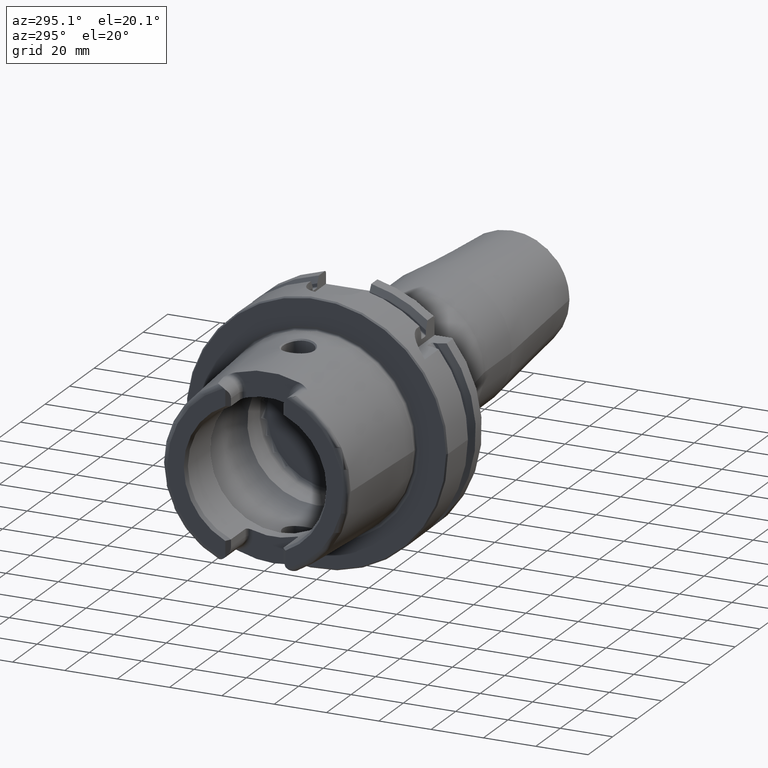
[diagram: clean part render]
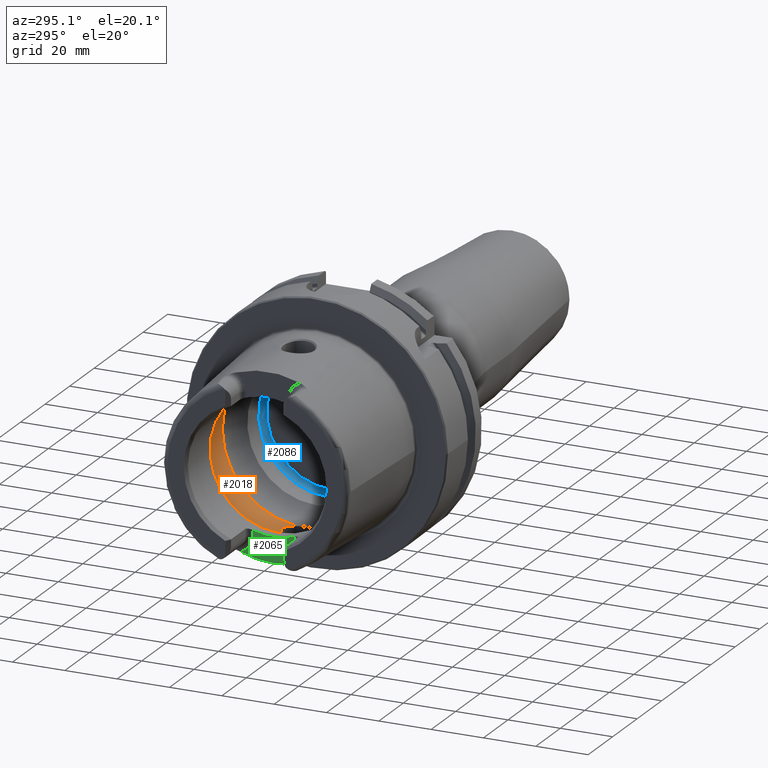
[diagram: same view with three faces highlighted in distinct colors, each labeled with its STEP entity id]
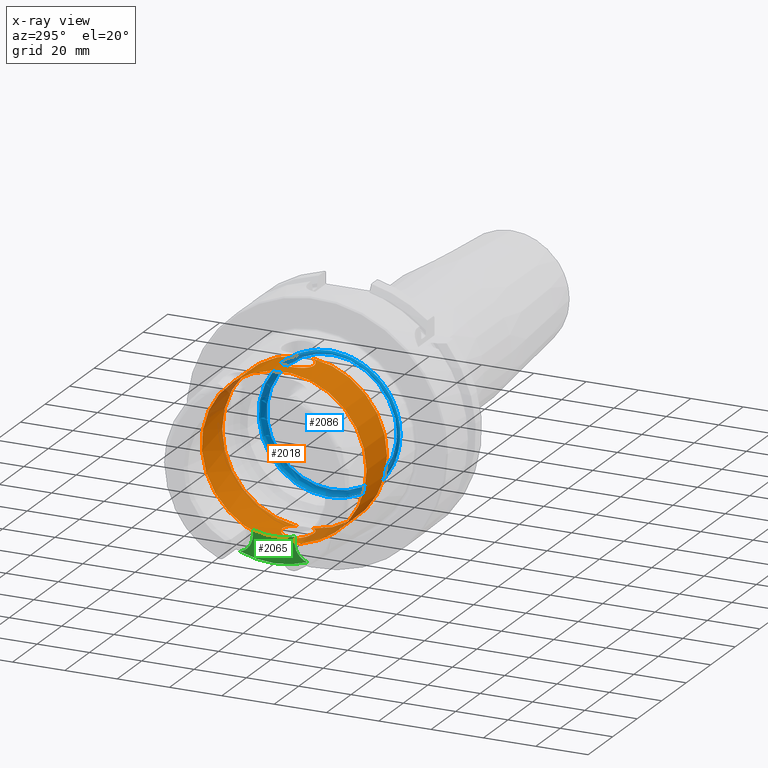
[diagram: x-ray of the same camera — body ghosted, the three highlighted faces saturated]
A machine part, auxiliary view with three faces highlighted in distinct colors.
The next image is the same camera in x-ray (body ghosted, the three faces saturated) — at least one of them is partly hidden behind the body in this view.
Their STEP definitions:

[orange] entity #2018 — the highlighted cylindrical surface (bore or boss wall) has radius 31.5 mm, axis along (-1, 0, 0).
#49=B_SPLINE_CURVE_WITH_KNOTS('',3,(#3595,#3596,#3597,#3598,#3599,#3600,
#3601,#3602,#3603,#3604,#3605,#3606,#3607,#3608,#3609,#3610,#3611,#3612,
#3613,#3614,#3615,#3616,#3617,#3618,#3619,#3620,#3621,#3622,#3623,#3624,
#3625),.UNSPECIFIED.,.F.,.F.,(4,2,2,2,2,2,2,2,2,2,2,3,2,2,4),(-2.42966289251045,
-2.26609494287567,-2.03948128472637,-1.81286762657707,-1.58625396842777,
-1.35964031027847,-1.1330370617835,-0.906433813288535,-0.679830564793567,
-0.453227316298599,-0.226613658149299,0.,0.2266136581493,0.453227316298599,
0.616795265988555),.UNSPECIFIED.);
#54=B_SPLINE_CURVE_WITH_KNOTS('',3,(#3787,#3788,#3789,#3790,#3791,#3792,
#3793,#3794,#3795,#3796,#3797,#3798,#3799,#3800,#3801,#3802,#3803,#3804,
#3805,#3806,#3807,#3808,#3809,#3810,#3811,#3812,#3813,#3814,#3815,#3816,
#3817),.UNSPECIFIED.,.F.,.F.,(4,2,2,3,2,2,2,2,2,2,2,2,2,2,4),(-0.616795265933374,
-0.453227316298598,-0.226613658149299,0.,0.2266136581493,0.453227316298599,
0.679830564793567,0.906433813288535,1.1330370617835,1.35964031027847,1.58625396842777,
1.81286762657707,2.03948128472637,2.26609494287567,2.42966289256562),
 .UNSPECIFIED.);
#183=CYLINDRICAL_SURFACE('',#2211,31.5);
#243=FACE_OUTER_BOUND('',#371,.T.);
#371=EDGE_LOOP('',(#1516,#1517,#1518,#1519,#1520,#1521,#1522,#1523,#1524));
#504=LINE('',#3833,#612);
#612=VECTOR('',#2604,31.5);
#719=CIRCLE('',#2212,31.5);
#720=CIRCLE('',#2213,31.5);
#721=CIRCLE('',#2214,31.5);
#722=CIRCLE('',#2215,31.5);
#723=CIRCLE('',#2216,31.5);
#894=VERTEX_POINT('',#3583);
#895=VERTEX_POINT('',#3594);
#898=VERTEX_POINT('',#3774);
#900=VERTEX_POINT('',#3786);
#901=VERTEX_POINT('',#3830);
#902=VERTEX_POINT('',#3832);
#903=VERTEX_POINT('',#3834);
#1127=EDGE_CURVE('',#895,#894,#49,.T.);
#1133=EDGE_CURVE('',#900,#898,#54,.T.);
#1136=EDGE_CURVE('',#901,#898,#719,.T.);
#1137=EDGE_CURVE('',#901,#902,#504,.T.);
#1138=EDGE_CURVE('',#902,#903,#720,.T.);
#1139=EDGE_CURVE('',#903,#902,#721,.T.);
#1140=EDGE_CURVE('',#895,#901,#722,.T.);
#1141=EDGE_CURVE('',#900,#894,#723,.T.);
#1516=ORIENTED_EDGE('',*,*,#1133,.T.);
#1517=ORIENTED_EDGE('',*,*,#1136,.F.);
#1518=ORIENTED_EDGE('',*,*,#1137,.T.);
#1519=ORIENTED_EDGE('',*,*,#1138,.T.);
#1520=ORIENTED_EDGE('',*,*,#1139,.T.);
#1521=ORIENTED_EDGE('',*,*,#1137,.F.);
#1522=ORIENTED_EDGE('',*,*,#1140,.F.);
#1523=ORIENTED_EDGE('',*,*,#1127,.T.);
#1524=ORIENTED_EDGE('',*,*,#1141,.F.);
#2018=ADVANCED_FACE('',(#243),#183,.F.);
#2211=AXIS2_PLACEMENT_3D('',#3829,#2600,#2601);
#2212=AXIS2_PLACEMENT_3D('',#3831,#2602,#2603);
#2213=AXIS2_PLACEMENT_3D('',#3835,#2605,#2606);
#2214=AXIS2_PLACEMENT_3D('',#3836,#2607,#2608);
#2215=AXIS2_PLACEMENT_3D('',#3837,#2609,#2610);
#2216=AXIS2_PLACEMENT_3D('',#3838,#2611,#2612);
#2600=DIRECTION('center_axis',(-1.,0.,0.));
#2601=DIRECTION('ref_axis',(0.,1.,0.));
#2602=DIRECTION('center_axis',(-1.,0.,0.));
#2603=DIRECTION('ref_axis',(0.,0.,1.));
#2604=DIRECTION('',(-1.,0.,0.));
#2605=DIRECTION('center_axis',(-1.,0.,0.));
#2606=DIRECTION('ref_axis',(0.,0.,1.));
#2607=DIRECTION('center_axis',(-1.,0.,0.));
#2608=DIRECTION('ref_axis',(0.,0.,1.));
#2609=DIRECTION('center_axis',(-1.,0.,0.));
#2610=DIRECTION('ref_axis',(0.,0.,1.));
#2611=DIRECTION('center_axis',(-1.,0.,0.));
#2612=DIRECTION('ref_axis',(0.,0.,1.));
#3583=CARTESIAN_POINT('',(-9.74679434480896,2.89893607109041,-31.3663222207471));
#3594=CARTESIAN_POINT('',(-9.74679434480896,-2.89893607109041,-31.3663222207471));
#3595=CARTESIAN_POINT('Ctrl Pts',(-9.74679434480898,-2.8989360710904,-31.3663222207471));
#3596=CARTESIAN_POINT('Ctrl Pts',(-10.0245557799842,-3.40227174537722,-31.3198029657389));
#3597=CARTESIAN_POINT('Ctrl Pts',(-10.3735944692601,-3.85887584349869,-31.2651415110221));
#3598=CARTESIAN_POINT('Ctrl Pts',(-11.289042660848,-4.77432403508655,-31.140708727458));
#3599=CARTESIAN_POINT('Ctrl Pts',(-11.9624834305428,-5.23577180141274,-31.0633803744766));
#3600=CARTESIAN_POINT('Ctrl Pts',(-13.4401908644727,-5.84865855662958,-30.9538382316308));
#3601=CARTESIAN_POINT('Ctrl Pts',(-14.2446211395023,-6.00000000000001,-30.9232921921325));
#3602=CARTESIAN_POINT('Ctrl Pts',(-15.7553788604977,-6.00000000000001,-30.9232921921325));
#3603=CARTESIAN_POINT('Ctrl Pts',(-16.5598091355273,-5.84865855662958,-30.9538382316308));
#3604=CARTESIAN_POINT('Ctrl Pts',(-18.0375165694572,-5.23577180141275,-31.0633803744766));
#3605=CARTESIAN_POINT('Ctrl Pts',(-18.710957339152,-4.77432403508655,-31.140708727458));
#3606=CARTESIAN_POINT('Ctrl Pts',(-19.7742996118461,-3.71098176239249,-31.2852440928545));
#3607=CARTESIAN_POINT('Ctrl Pts',(-20.2357665181958,-3.03753058698362,-31.3619556484746));
#3608=CARTESIAN_POINT('Ctrl Pts',(-20.8486671603361,-1.55978711209124,-31.4700797313679));
#3609=CARTESIAN_POINT('Ctrl Pts',(-21.,-0.755344161649895,-31.5));
#3610=CARTESIAN_POINT('Ctrl Pts',(-21.,0.755344161649892,-31.5));
#3611=CARTESIAN_POINT('Ctrl Pts',(-20.8486671603361,1.55978711209124,-31.4700797313679));
#3612=CARTESIAN_POINT('Ctrl Pts',(-20.2357665181958,3.03753058698362,-31.3619556484746));
#3613=CARTESIAN_POINT('Ctrl Pts',(-19.7742996118461,3.71098176239249,-31.2852440928545));
#3614=CARTESIAN_POINT('Ctrl Pts',(-18.710957339152,4.77432403508655,-31.140708727458));
#3615=CARTESIAN_POINT('Ctrl Pts',(-18.0375165694572,5.23577180141274,-31.0633803744766));
#3616=CARTESIAN_POINT('Ctrl Pts',(-16.5598091355273,5.84865855662958,-30.9538382316308));
#3617=CARTESIAN_POINT('Ctrl Pts',(-15.7553788604977,6.00000000000001,-30.9232921921325));
#3618=CARTESIAN_POINT('Ctrl Pts',(-15.,6.00000000000001,-30.9232921921325));
#3619=CARTESIAN_POINT('Ctrl Pts',(-14.2446211395023,6.00000000000001,-30.9232921921325));
#3620=CARTESIAN_POINT('Ctrl Pts',(-13.4401908644727,5.84865855662958,-30.9538382316308));
#3621=CARTESIAN_POINT('Ctrl Pts',(-11.9624834305428,5.23577180141274,-31.0633803744766));
#3622=CARTESIAN_POINT('Ctrl Pts',(-11.289042660848,4.77432403508655,-31.140708727458));
#3623=CARTESIAN_POINT('Ctrl Pts',(-10.3735944691306,3.85887584336922,-31.2651415110397));
#3624=CARTESIAN_POINT('Ctrl Pts',(-10.0245557801354,3.40227174565105,-31.3198029657135));
#3625=CARTESIAN_POINT('Ctrl Pts',(-9.74679434480898,2.8989360710904,-31.3663222207471));
#3774=CARTESIAN_POINT('',(-9.74679434480896,-2.89893607109042,31.3663222207471));
#3786=CARTESIAN_POINT('',(-9.74679434480896,2.89893607109042,31.3663222207471));
#3787=CARTESIAN_POINT('Ctrl Pts',(-9.74679434480897,2.89893607109041,31.3663222207471));
#3788=CARTESIAN_POINT('Ctrl Pts',(-10.0245557799842,3.40227174537723,31.3198029657389));
#3789=CARTESIAN_POINT('Ctrl Pts',(-10.3735944692601,3.85887584349869,31.2651415110221));
#3790=CARTESIAN_POINT('Ctrl Pts',(-11.289042660848,4.77432403508655,31.140708727458));
#3791=CARTESIAN_POINT('Ctrl Pts',(-11.9624834305428,5.23577180141274,31.0633803744766));
#3792=CARTESIAN_POINT('Ctrl Pts',(-13.4401908644727,5.84865855662958,30.9538382316308));
#3793=CARTESIAN_POINT('Ctrl Pts',(-14.2446211395023,6.00000000000001,30.9232921921325));
#3794=CARTESIAN_POINT('Ctrl Pts',(-15.,6.00000000000001,30.9232921921325));
#3795=CARTESIAN_POINT('Ctrl Pts',(-15.7553788604977,6.00000000000001,30.9232921921325));
#3796=CARTESIAN_POINT('Ctrl Pts',(-16.5598091355273,5.84865855662958,30.9538382316308));
#3797=CARTESIAN_POINT('Ctrl Pts',(-18.0375165694572,5.23577180141274,31.0633803744766));
#3798=CARTESIAN_POINT('Ctrl Pts',(-18.710957339152,4.77432403508655,31.140708727458));
#3799=CARTESIAN_POINT('Ctrl Pts',(-19.7742996118461,3.71098176239249,31.2852440928545));
#3800=CARTESIAN_POINT('Ctrl Pts',(-20.2357665181958,3.03753058698362,31.3619556484746));
#3801=CARTESIAN_POINT('Ctrl Pts',(-20.8486671603361,1.55978711209124,31.4700797313679));
#3802=CARTESIAN_POINT('Ctrl Pts',(-21.,0.755344161649892,31.5));
#3803=CARTESIAN_POINT('Ctrl Pts',(-21.,-0.755344161649894,31.5));
#3804=CARTESIAN_POINT('Ctrl Pts',(-20.8486671603361,-1.55978711209124,31.4700797313679));
#3805=CARTESIAN_POINT('Ctrl Pts',(-20.2357665181958,-3.03753058698362,31.3619556484746));
#3806=CARTESIAN_POINT('Ctrl Pts',(-19.7742996118461,-3.71098176239249,31.2852440928545));
#3807=CARTESIAN_POINT('Ctrl Pts',(-18.710957339152,-4.77432403508655,31.140708727458));
#3808=CARTESIAN_POINT('Ctrl Pts',(-18.0375165694572,-5.23577180141274,31.0633803744766));
#3809=CARTESIAN_POINT('Ctrl Pts',(-16.5598091355273,-5.84865855662958,30.9538382316308));
#3810=CARTESIAN_POINT('Ctrl Pts',(-15.7553788604977,-6.00000000000001,30.9232921921325));
#3811=CARTESIAN_POINT('Ctrl Pts',(-14.2446211395023,-6.00000000000001,30.9232921921325));
#3812=CARTESIAN_POINT('Ctrl Pts',(-13.4401908644727,-5.84865855662958,30.9538382316308));
#3813=CARTESIAN_POINT('Ctrl Pts',(-11.9624834305428,-5.23577180141274,31.0633803744766));
#3814=CARTESIAN_POINT('Ctrl Pts',(-11.289042660848,-4.77432403508655,31.140708727458));
#3815=CARTESIAN_POINT('Ctrl Pts',(-10.3735944691306,-3.85887584336922,31.2651415110397));
#3816=CARTESIAN_POINT('Ctrl Pts',(-10.0245557801353,-3.40227174565106,31.3198029657135));
#3817=CARTESIAN_POINT('Ctrl Pts',(-9.74679434480897,-2.89893607109041,31.3663222207471));
#3829=CARTESIAN_POINT('Origin',(-18.1430342013226,0.,0.));
#3830=CARTESIAN_POINT('',(-9.74679434480896,-31.5,3.85763741731416E-15));
#3831=CARTESIAN_POINT('Origin',(-9.74679434480896,0.,0.));
#3832=CARTESIAN_POINT('',(-26.5392740578363,-31.5,3.85763741731416E-15));
#3833=CARTESIAN_POINT('',(-18.1430342013226,-31.5,3.85763741731416E-15));
#3834=CARTESIAN_POINT('',(-26.5392740578363,-3.85763741731416E-15,-31.5));
#3835=CARTESIAN_POINT('Origin',(-26.5392740578363,0.,0.));
#3836=CARTESIAN_POINT('Origin',(-26.5392740578363,0.,0.));
#3837=CARTESIAN_POINT('Origin',(-9.74679434480896,0.,0.));
#3838=CARTESIAN_POINT('Origin',(-9.74679434480896,0.,0.));

[blue] entity #2086 — the highlighted toroidal blend (fillet) surface has major radius 24.9 mm and minor (blend) radius 2 mm.
#156=TOROIDAL_SURFACE('',#2348,24.9,2.);
#311=FACE_OUTER_BOUND('',#443,.T.);
#443=EDGE_LOOP('',(#1887,#1888,#1889,#1890,#1891));
#787=CIRCLE('',#2347,24.9);
#788=CIRCLE('',#2349,2.);
#789=CIRCLE('',#2350,26.5);
#790=CIRCLE('',#2351,26.5);
#1002=VERTEX_POINT('',#4479);
#1003=VERTEX_POINT('',#4482);
#1004=VERTEX_POINT('',#4484);
#1304=EDGE_CURVE('',#1002,#1002,#787,.T.);
#1305=EDGE_CURVE('',#1002,#1003,#788,.T.);
#1306=EDGE_CURVE('',#1003,#1004,#789,.T.);
#1307=EDGE_CURVE('',#1004,#1003,#790,.T.);
#1887=ORIENTED_EDGE('',*,*,#1304,.F.);
#1888=ORIENTED_EDGE('',*,*,#1305,.T.);
#1889=ORIENTED_EDGE('',*,*,#1306,.T.);
#1890=ORIENTED_EDGE('',*,*,#1307,.T.);
#1891=ORIENTED_EDGE('',*,*,#1305,.F.);
#2086=ADVANCED_FACE('',(#311),#156,.F.);
#2347=AXIS2_PLACEMENT_3D('',#4480,#2931,#2932);
#2348=AXIS2_PLACEMENT_3D('',#4481,#2933,#2934);
#2349=AXIS2_PLACEMENT_3D('',#4483,#2935,#2936);
#2350=AXIS2_PLACEMENT_3D('',#4485,#2937,#2938);
#2351=AXIS2_PLACEMENT_3D('',#4486,#2939,#2940);
#2931=DIRECTION('center_axis',(-1.,0.,0.));
#2932=DIRECTION('ref_axis',(0.,0.,1.));
#2933=DIRECTION('center_axis',(-1.,0.,0.));
#2934=DIRECTION('ref_axis',(0.,0.,1.));
#2935=DIRECTION('center_axis',(0.,1.,-1.22464679914735E-16));
#2936=DIRECTION('ref_axis',(0.,-1.22464679914735E-16,-1.));
#2937=DIRECTION('center_axis',(-1.,0.,0.));
#2938=DIRECTION('ref_axis',(0.,0.,1.));
#2939=DIRECTION('center_axis',(-1.,0.,0.));
#2940=DIRECTION('ref_axis',(0.,0.,1.));
#4479=CARTESIAN_POINT('',(12.5,-3.04937052987691E-15,-24.9));
#4480=CARTESIAN_POINT('Origin',(12.5,0.,0.));
#4481=CARTESIAN_POINT('Origin',(10.5,0.,0.));
#4482=CARTESIAN_POINT('',(9.3,-3.24531401774049E-15,-26.5));
#4483=CARTESIAN_POINT('Origin',(10.5,-3.04937052987691E-15,-24.9));
#4484=CARTESIAN_POINT('',(9.3,-26.5,3.24531401774049E-15));
#4485=CARTESIAN_POINT('Origin',(9.3,0.,0.));
#4486=CARTESIAN_POINT('Origin',(9.3,0.,0.));

[green] entity #2065 — the highlighted planar face has unit normal (-1, 0, 0).
#124=PLANE('',#2308);
#290=FACE_OUTER_BOUND('',#419,.T.);
#419=EDGE_LOOP('',(#1786,#1787,#1788,#1789,#1790,#1791));
#552=LINE('',#4392,#660);
#555=LINE('',#4404,#663);
#660=VECTOR('',#2834,10.);
#663=VECTOR('',#2849,10.);
#715=CIRCLE('',#2205,36.25399498998);
#766=CIRCLE('',#2302,6.88);
#769=CIRCLE('',#2309,26.5);
#770=CIRCLE('',#2310,6.88);
#886=VERTEX_POINT('',#3468);
#887=VERTEX_POINT('',#3479);
#988=VERTEX_POINT('',#4376);
#990=VERTEX_POINT('',#4381);
#992=VERTEX_POINT('',#4401);
#993=VERTEX_POINT('',#4403);
#1115=EDGE_CURVE('',#886,#887,#715,.T.);
#1269=EDGE_CURVE('',#988,#886,#766,.T.);
#1271=EDGE_CURVE('',#990,#988,#552,.T.);
#1276=EDGE_CURVE('',#992,#990,#769,.T.);
#1277=EDGE_CURVE('',#993,#992,#555,.T.);
#1278=EDGE_CURVE('',#887,#993,#770,.T.);
#1786=ORIENTED_EDGE('',*,*,#1269,.F.);
#1787=ORIENTED_EDGE('',*,*,#1271,.F.);
#1788=ORIENTED_EDGE('',*,*,#1276,.F.);
#1789=ORIENTED_EDGE('',*,*,#1277,.F.);
#1790=ORIENTED_EDGE('',*,*,#1278,.F.);
#1791=ORIENTED_EDGE('',*,*,#1115,.F.);
#2065=ADVANCED_FACE('',(#290),#124,.T.);
#2205=AXIS2_PLACEMENT_3D('',#3480,#2585,#2586);
#2302=AXIS2_PLACEMENT_3D('',#4378,#2830,#2831);
#2308=AXIS2_PLACEMENT_3D('',#4400,#2845,#2846);
#2309=AXIS2_PLACEMENT_3D('',#4402,#2847,#2848);
#2310=AXIS2_PLACEMENT_3D('',#4405,#2850,#2851);
#2585=DIRECTION('center_axis',(1.,0.,0.));
#2586=DIRECTION('ref_axis',(0.,1.,0.));
#2830=DIRECTION('center_axis',(-1.,0.,0.));
#2831=DIRECTION('ref_axis',(0.,0.510937901715381,-0.8596176246394));
#2834=DIRECTION('',(0.,0.,-1.));
#2845=DIRECTION('center_axis',(-1.,0.,0.));
#2846=DIRECTION('ref_axis',(0.,0.,1.));
#2847=DIRECTION('center_axis',(-1.,0.,0.));
#2848=DIRECTION('ref_axis',(0.,1.,0.));
#2849=DIRECTION('',(0.,0.,1.));
#2850=DIRECTION('center_axis',(-1.,0.,0.));
#2851=DIRECTION('ref_axis',(0.,-0.510937901715381,-0.8596176246394));
#3468=CARTESIAN_POINT('',(-35.,-12.7918651267415,-33.9222690767105));
#3479=CARTESIAN_POINT('',(-35.,12.7918651267415,-33.9222690767105));
#3480=CARTESIAN_POINT('Origin',(-35.,0.,0.));
#4376=CARTESIAN_POINT('',(-35.,-8.01,-27.37));
#4378=CARTESIAN_POINT('Origin',(-35.,-14.89,-27.37));
#4381=CARTESIAN_POINT('',(-35.,-8.01,-25.2604414054862));
#4392=CARTESIAN_POINT('',(-35.,-8.01,-28.685));
#4400=CARTESIAN_POINT('Origin',(-35.,8.88178419700125E-15,-30.));
#4401=CARTESIAN_POINT('',(-35.,8.01,-25.2604414054862));
#4402=CARTESIAN_POINT('Origin',(-35.,0.,0.));
#4403=CARTESIAN_POINT('',(-35.,8.01,-27.37));
#4404=CARTESIAN_POINT('',(-35.,8.01,-25.));
#4405=CARTESIAN_POINT('Origin',(-35.,14.89,-27.37));